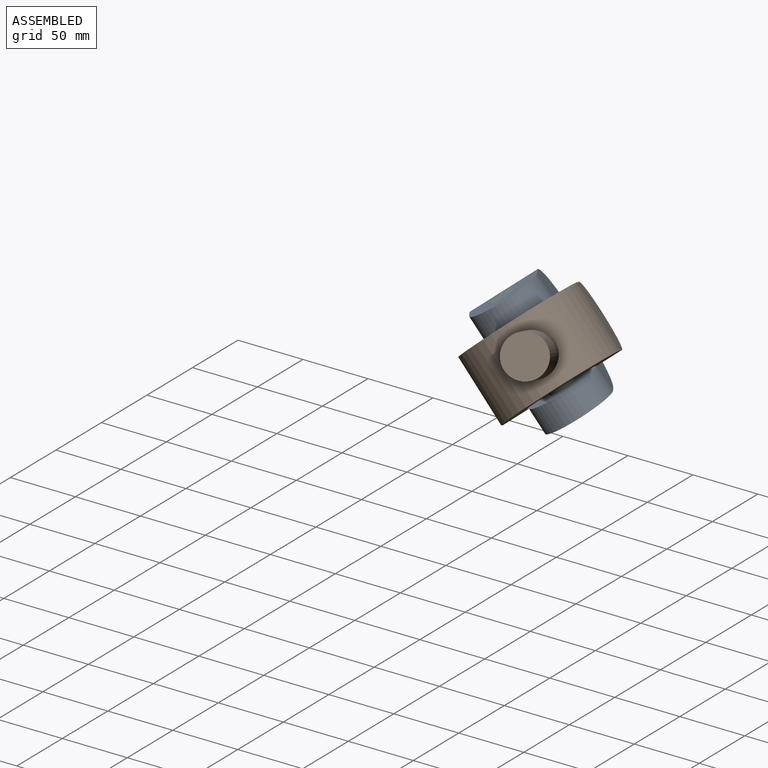
[diagram: assembled view]
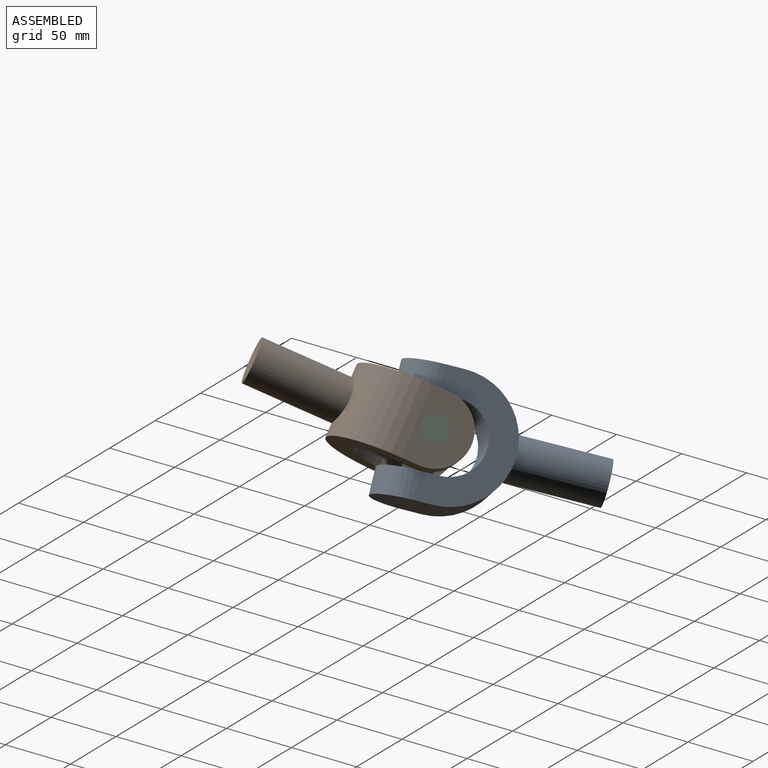
[diagram: assembled view, second angle]
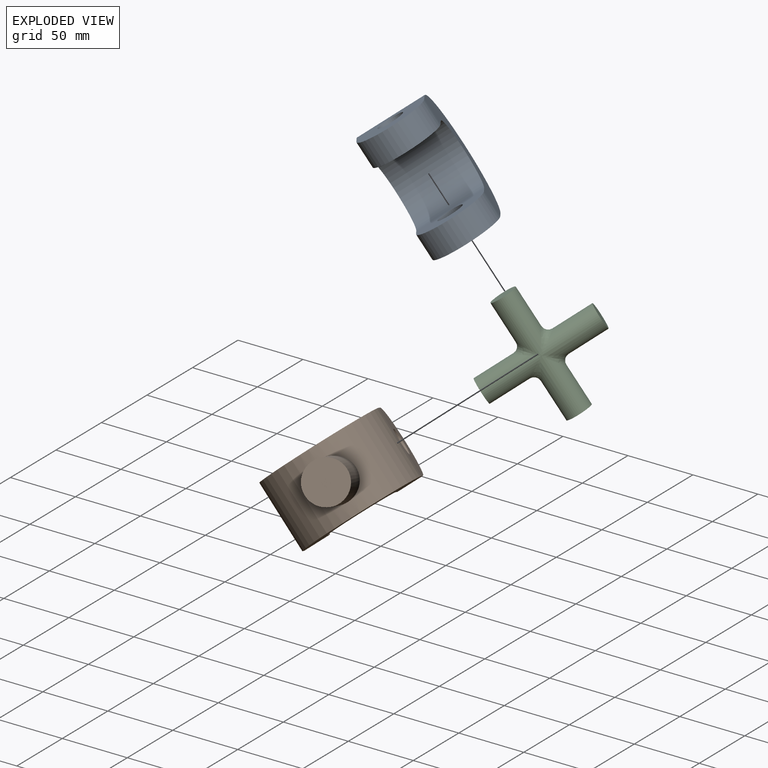
[diagram: exploded view]
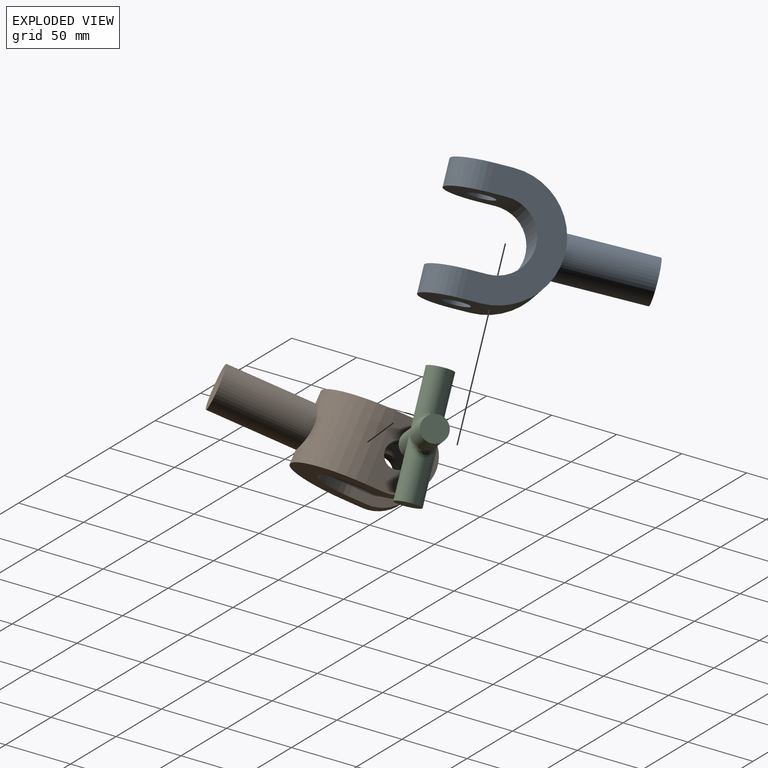
[diagram: exploded view, second angle]
ASSEMBLY  parts=3 mates=2
PART A: 14 faces, bbox 88.9x50.8x144.7 mm
  f0: cylinder r=44.45mm len=88.9mm, axis (0,1,0), area 6286.6mm2, adj f1,f4,f5,f6,f12
  f1: plane 50.8x38.1mm, normal (-1,0,0), area 1373.6mm2, adj f0,f4,f5,f10,f11
  f2: plane 50.8x38.1mm, normal (1,0,0), area 1373.6mm2, adj f4,f5,f7,f10,f11
  f3: plane 50.8x38.1mm, normal (-1,0,0), area 1373.6mm2, adj f4,f5,f7,f8,f9
  f4: plane 88.9x57.15mm, normal (0,1,0), area 2574mm2, adj f0,f1,f2,f3,f6,f7,f9,f11
  f5: plane 88.9x57.15mm, normal (0,-1,0), area 2574mm2, adj f0,f1,f2,f3,f6,f7,f9,f11
  f6: plane 50.8x38.1mm, normal (1,0,0), area 1373.6mm2, adj f0,f4,f5,f8,f9
  f7: cylinder r=25.4mm len=50.8mm, axis (0,1,0), area 4053.7mm2, adj f2,f3,f4,f5
  f8: cylinder r=9.53mm len=19.05mm, axis (1,0,0), area 1140.1mm2, adj f3,f6
  f9: cylinder r=25.4mm len=50.8mm, axis (1,0,0), area 1520.1mm2, adj f3,f4,f5,f6
  f10: cylinder r=9.53mm len=19.05mm, axis (1,0,0), area 1140.1mm2, adj f1,f2
  f11: cylinder r=25.4mm len=50.8mm, axis (1,0,0), area 1520.1mm2, adj f1,f2,f4,f5
  f12: cylinder r=15.88mm len=65.1mm, axis (0,0,-1), area 6345.3mm2, adj f0,f13
  f13: plane 31.75x31.75mm, normal (0,0,1), area 791.7mm2, adj f12
PART B: same geometry as A
PART C: 12 faces, bbox 88.9x19.1x88.9 mm
  f0: cylinder r=9.53mm len=44.45mm, axis (-1,0,0), area 2103.8mm2, adj f2,f9,f11
  f1: plane 19.05x19.05mm, normal (0,0,1), area 285mm2, adj f3
  f2: plane 19.05x19.05mm, normal (1,0,0), area 285mm2, adj f0
  f3: cylinder r=9.53mm len=44.45mm, axis (0,0,1), area 2103.8mm2, adj f1,f10,f11
  f4: cylinder r=9.53mm len=44.45mm, axis (-1,0,0), area 2103.8mm2, adj f5,f8,f10
  f5: plane 19.05x19.05mm, normal (-1,0,0), area 285mm2, adj f4
  f6: plane 19.05x19.05mm, normal (0,0,-1), area 285mm2, adj f7
  f7: cylinder r=9.53mm len=44.45mm, axis (0,0,-1), area 2103.8mm2, adj f6,f8,f9
  f8: bspline ~19.05x14.61mm, area 175.5mm2, adj f4,f7
  f9: bspline ~19.05x14.61mm, area 175.5mm2, adj f0,f7
  f10: bspline ~19.05x14.61mm, area 175.6mm2, adj f3,f4
  f11: bspline ~19.05x14.61mm, area 175.6mm2, adj f0,f3
PLACE A rot(axis=(-0.86,0.17,0.48),130.1deg) t=(-135.77,-254.52,132.9)mm
PLACE B rot(axis=(0.77,-0.03,0.63),89.4deg) t=(-160.86,-177.11,207.2)mm
PLACE C rot(axis=(0.9,0.33,0.31),175deg) t=(-132.69,-197.57,198.37)mm
MATE revolute A.f8 <-> C.f3  axis (0.57,0.12,-0.81) through (-134.02,-219.23,139.37)mm
MATE revolute C.f0 <-> B.f8  axis (0.6,0.61,0.52) through (-132.69,-197.57,198.37)mm
